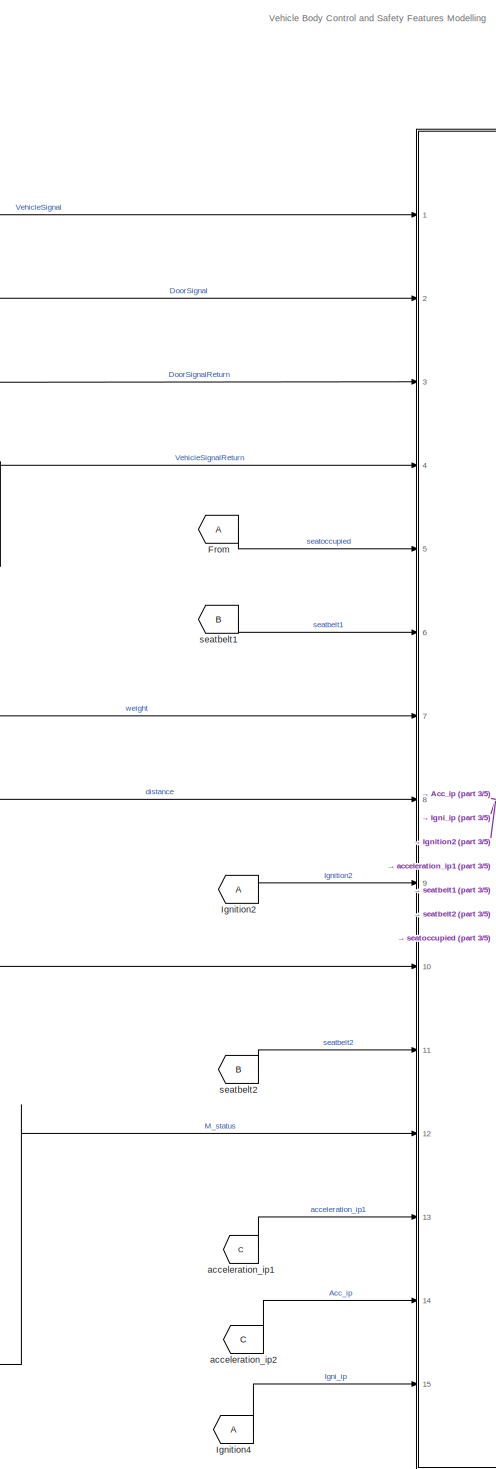
[diagram: root canvas - part 1/5, center side, full height]
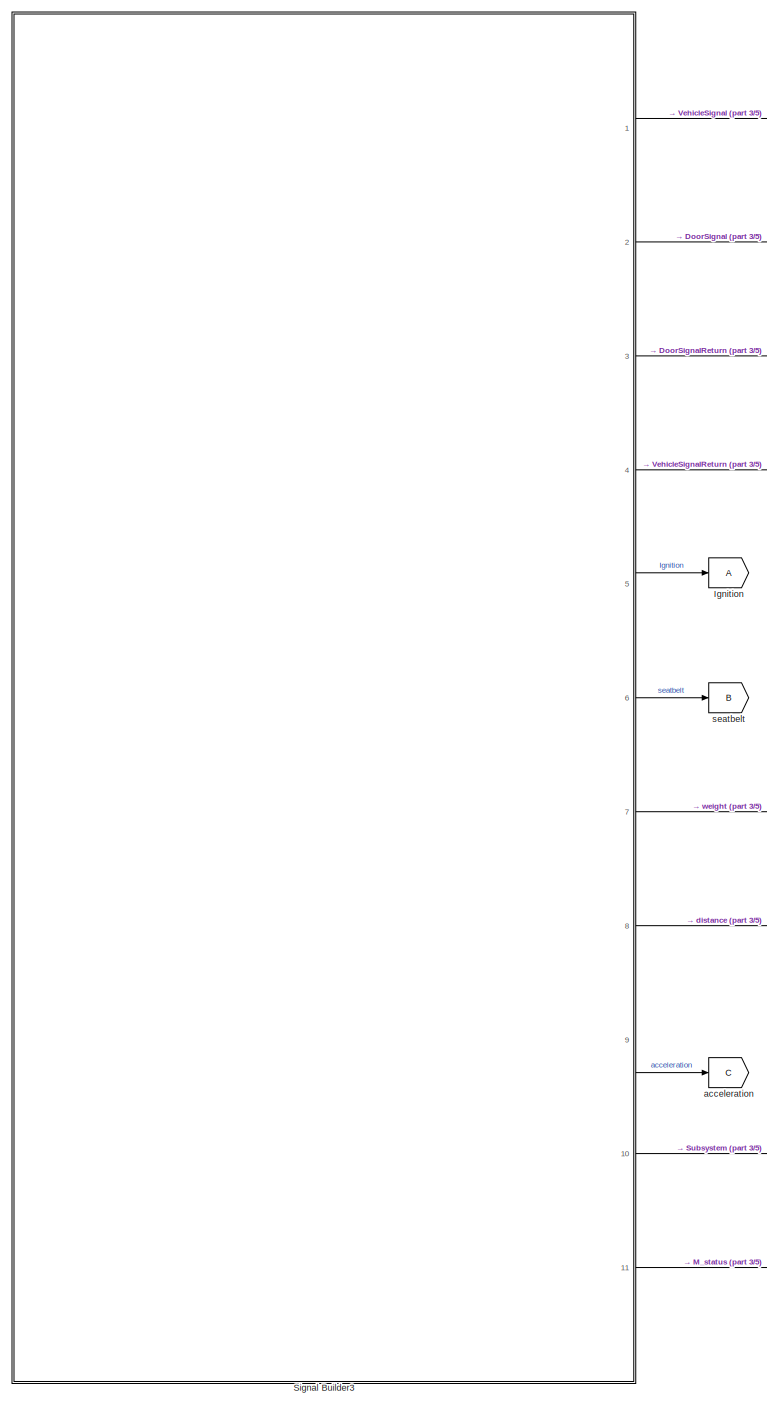
[diagram: root canvas - part 2/5, left side, full height]
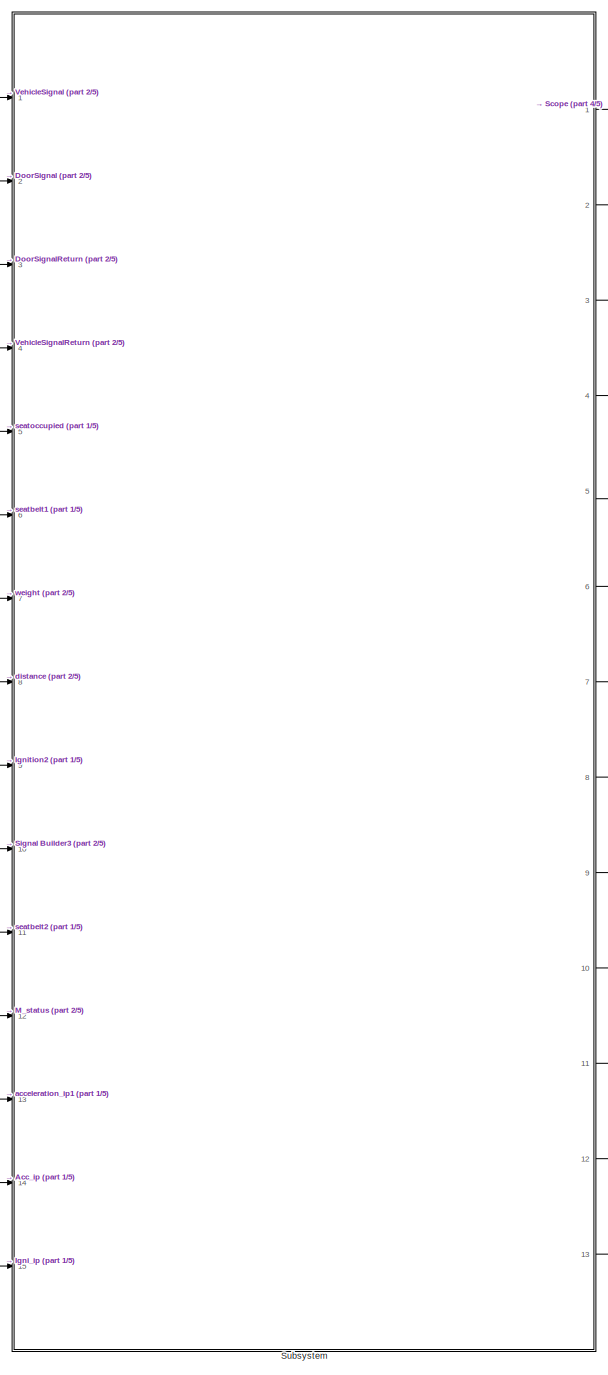
[diagram: root canvas - part 3/5, center side, full height]
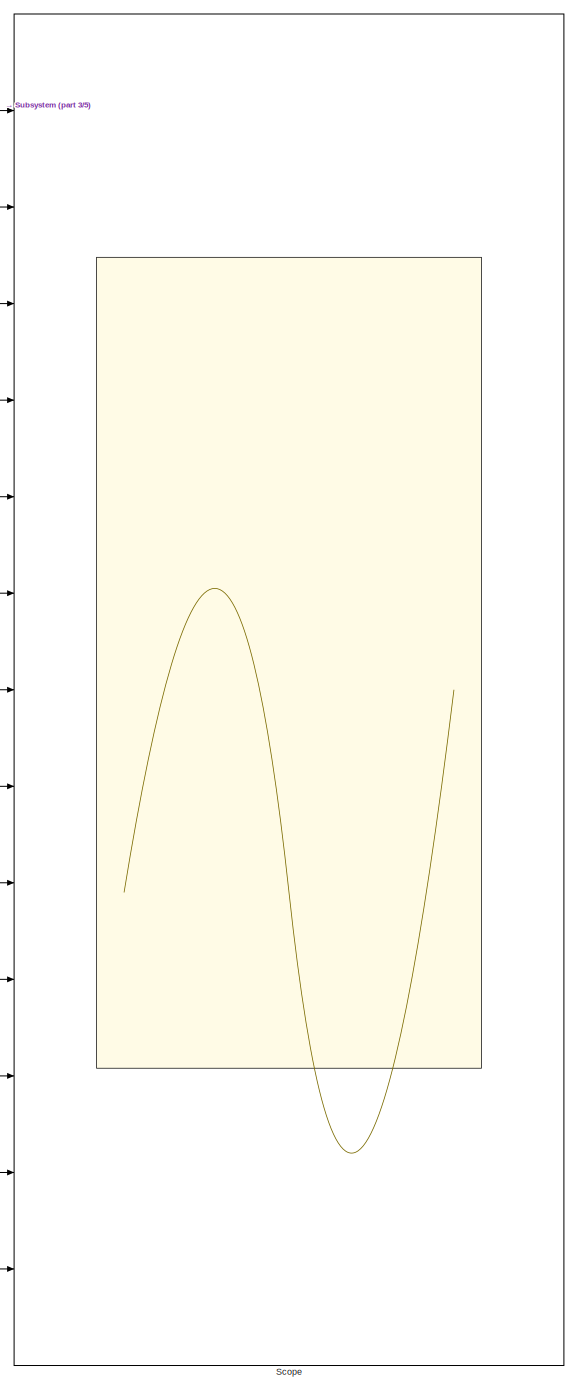
[diagram: root canvas - part 4/5, right side, full height]
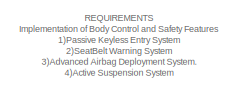
[diagram: root canvas - part 5/5, top left region]
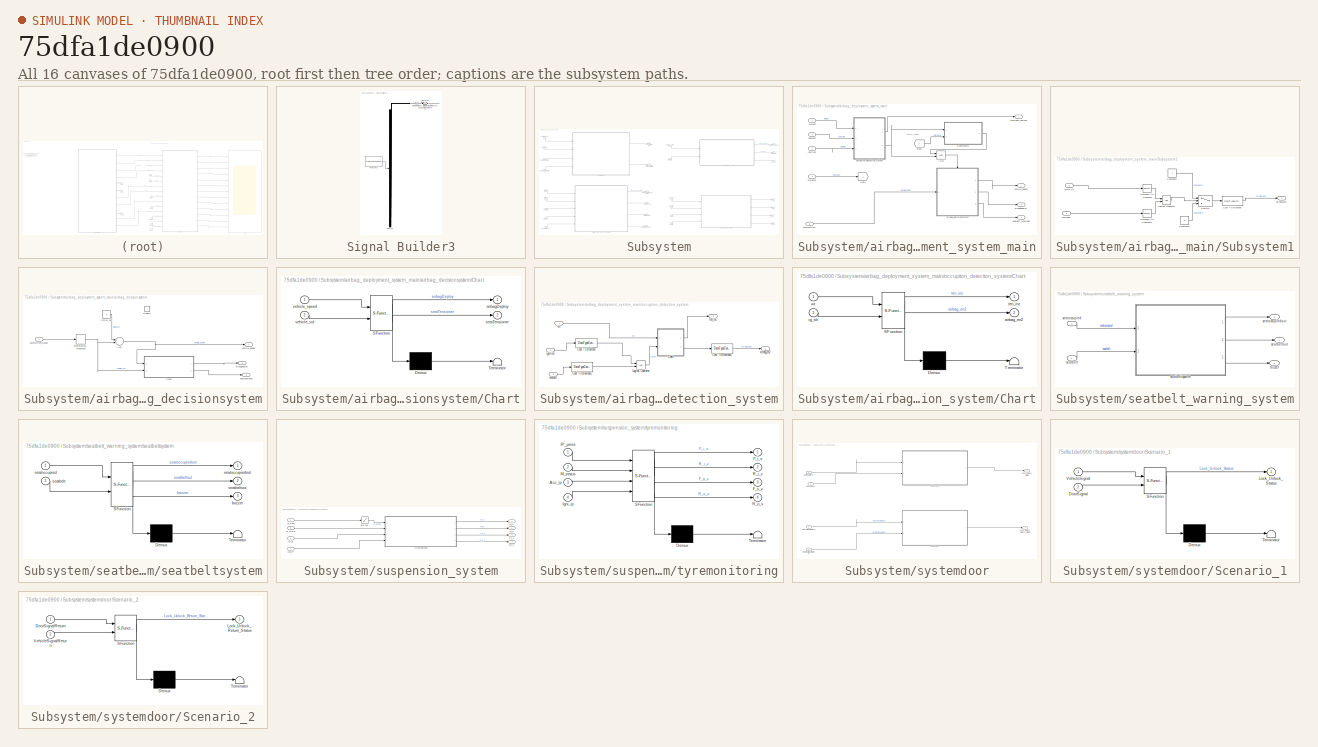
[diagram: thumbnail index - all 16 canvases of the model, root first then tree order]
MODEL slx_75dfa1de0900
KIND model
CONFIG AbsTol = auto
CONFIG EnableMultiTasking = off
CONFIG FixedStep = auto
CONFIG MaxStep = auto
CONFIG MinStep = auto
CONFIG RelTol = 1e-3
CONFIG SampleTimeConstraint = Unconstrained
CONFIG Solver = VariableStepAuto
CONFIG SolverName = VariableStepAuto
CONFIG StartTime = 0.0
CONFIG StopTime = 10.0
BLOCK [From] From
BLOCK [Goto] Ignition
BLOCK [From] Ignition2
BLOCK [From] Ignition4
BLOCK [Scope] Scope
  Floating = off
  NumInputPorts = 13
  Ports = [13]
  ScopeSpecificationString = Simulink.scopes.TimeScopeBlockCfg('CurrentConfiguration', extmgr.ConfigurationSet(extmgr.Configuration('Core','General UI',true),extmgr.Configuration('Core','Source UI',true),extmgr.Configuration('Sources','WiredSimulink',true,'DataLoggingVariableName','ScopeData1'),extmgr.Configuration('Visuals','Time Domain',true,'SerializedDisplays',{struct('MinYLimReal','-0.375','MaxYLimReal','3.375','YLabelRe...<+12526ch>
BLOCK [SubSystem] Signal Builder3
  ClipboardFcn = sigbuilder_block('clipboard');
  CloseFcn = sigbuilder_block('close');
  ContinueFcn = sigbuilder_block('continue')
  CopyFcn = sigbuilder_block('copy');
  DeleteFcn = sigbuilder_block('delete');
  LoadFcn = sigbuilder_block('load');
  MaskHideContents = on
  ModelCloseFcn = sigbuilder_block('modelClose');
  NameChangeFcn = sigbuilder_block('namechange');
  OpenFcn = sigbuilder_block('open',[6 30 1012.5 447.75 ]);
  PauseFcn = sigbuilder_block('pause')
  Ports = [0, 11]
  PreSaveFcn = sigbuilder_block('preSave');
  RequestExecContextInheritance = off
  StartFcn = sigbuilder_block('start');
  StopFcn = sigbuilder_block('stop');
  Tag = STV Subsys
BLOCK [Demux] Signal Builder3/Demux
  Outputs = 11
  Ports = [1, 11]
  Tag = STV Demux
BLOCK [Outport] Signal Builder3/DoorSignal
  IconDisplay = Port number
  Port = 2
  Tag = STV Outport
BLOCK [Outport] Signal Builder3/DoorSignalReturn
  IconDisplay = Port number
  Port = 3
  Tag = STV Outport
BLOCK [FromWorkspace] Signal Builder3/FromWs
  SampleTime = 0
  Tag = STV FromWs
  VariableName = tuvar
  ZeroCross = on
BLOCK [Outport] Signal Builder3/IP_pressure
  IconDisplay = Port number
  Port = 10
  Tag = STV Outport
BLOCK [Outport] Signal Builder3/Mode_status
  IconDisplay = Port number
  Port = 11
  Tag = STV Outport
BLOCK [Outport] Signal Builder3/VehicleSignal
  IconDisplay = Port number
  Tag = STV Outport
  VectorParamsAs1DForOutWhenUnconnected = off
BLOCK [Outport] Signal Builder3/VehicleSignalReturn
  IconDisplay = Port number
  Port = 4
  Tag = STV Outport
BLOCK [Outport] Signal Builder3/acceleration
  IconDisplay = Port number
  Port = 9
  Tag = STV Outport
BLOCK [Outport] Signal Builder3/distance
  IconDisplay = Port number
  Port = 8
  Tag = STV Outport
BLOCK [Outport] Signal Builder3/ignition
  IconDisplay = Port number
  Port = 5
  Tag = STV Outport
BLOCK [Outport] Signal Builder3/seatbelt
  IconDisplay = Port number
  Port = 6
  Tag = STV Outport
BLOCK [Outport] Signal Builder3/weight
  IconDisplay = Port number
  Port = 7
  Tag = STV Outport
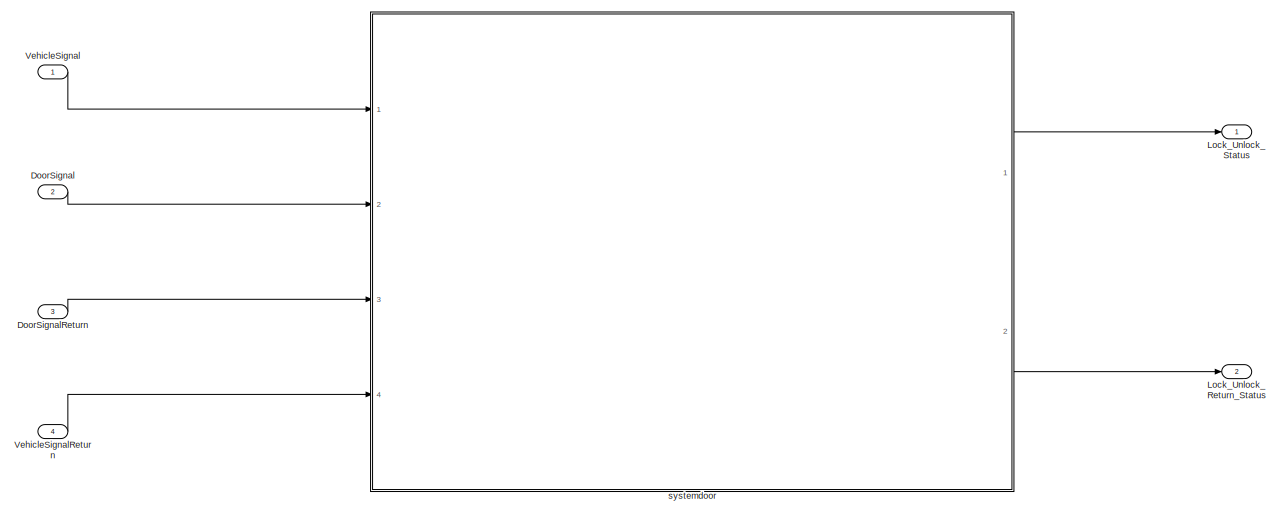
[diagram: Subsystem - part 1/4, top left region]
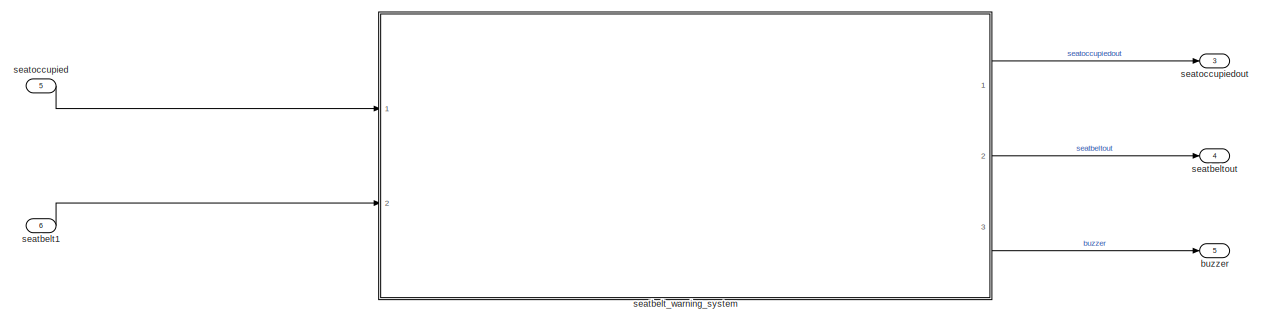
[diagram: Subsystem - part 2/4, top right region]
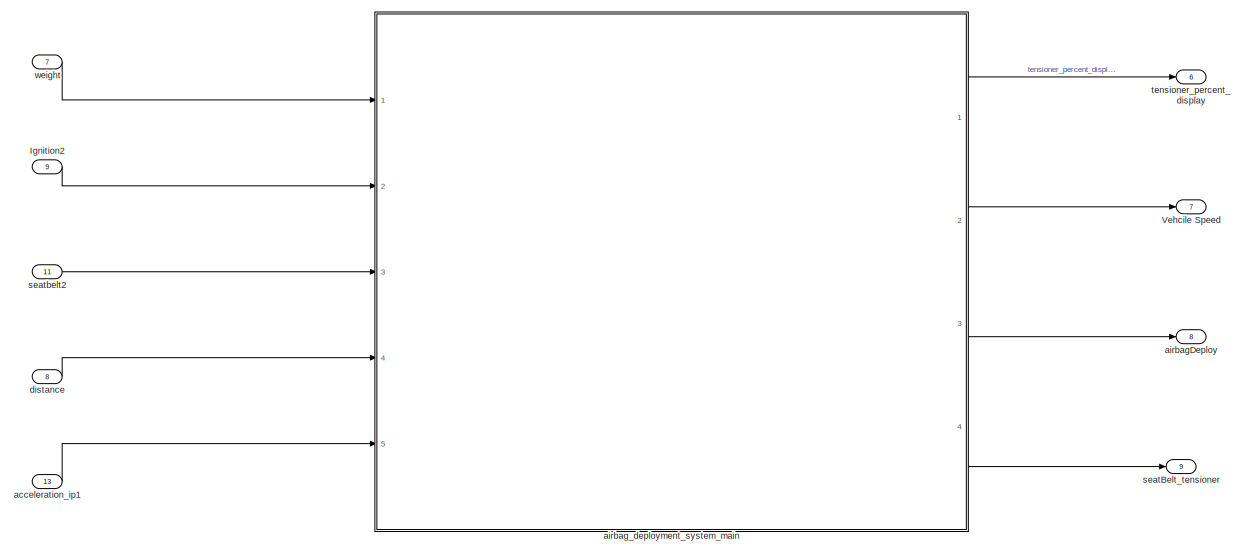
[diagram: Subsystem - part 3/4, bottom left region]
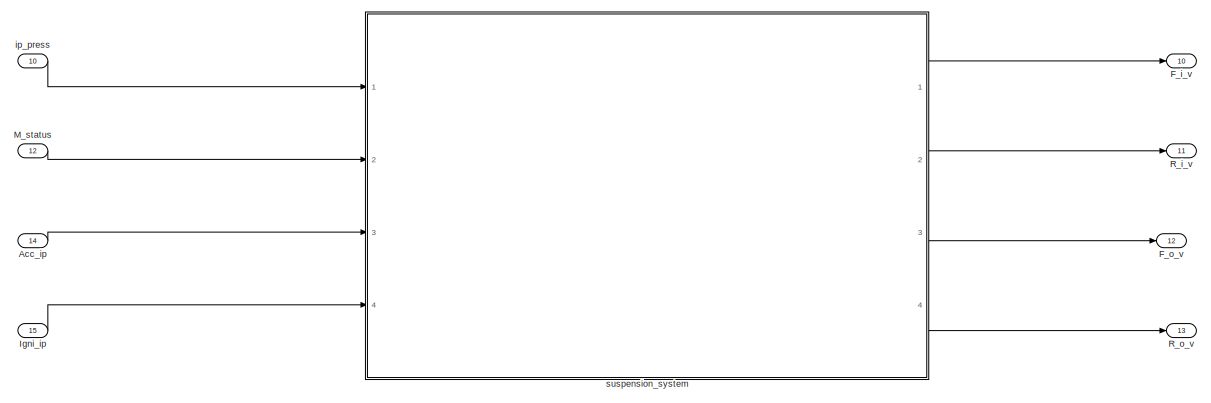
[diagram: Subsystem - part 4/4, bottom right region]
BLOCK [SubSystem] Subsystem
  Ports = [15, 13]
  RequestExecContextInheritance = off
BLOCK [Inport] Subsystem/Acc_ip
  IconDisplay = Port number
  Port = 14
BLOCK [Inport] Subsystem/DoorSignal
  IconDisplay = Port number
  Port = 2
BLOCK [Inport] Subsystem/DoorSignalReturn
  IconDisplay = Port number
  Port = 3
BLOCK [Outport] Subsystem/F_i_v
  IconDisplay = Port number
  Port = 10
BLOCK [Outport] Subsystem/F_o_v
  IconDisplay = Port number
  Port = 12
BLOCK [Inport] Subsystem/Igni_ip
  IconDisplay = Port number
  Port = 15
BLOCK [Inport] Subsystem/Ignition2
  IconDisplay = Port number
  Port = 9
BLOCK [Outport] Subsystem/Lock_Unlock_Return_Status
  IconDisplay = Port number
  Port = 2
BLOCK [Outport] Subsystem/Lock_Unlock_Status 
  IconDisplay = Port number
BLOCK [Inport] Subsystem/M_status
  IconDisplay = Port number
  Port = 12
BLOCK [Outport] Subsystem/R_i_v
  IconDisplay = Port number
  Port = 11
BLOCK [Outport] Subsystem/R_o_v
  IconDisplay = Port number
  Port = 13
BLOCK [Outport] Subsystem/Vehcile Speed
  IconDisplay = Port number
  Port = 7
BLOCK [Inport] Subsystem/VehicleSignal
  IconDisplay = Port number
BLOCK [Inport] Subsystem/VehicleSignalReturn
  IconDisplay = Port number
  Port = 4
BLOCK [Inport] Subsystem/acceleration_ip1
  IconDisplay = Port number
  Port = 13
BLOCK [Outport] Subsystem/airbagDeploy
  IconDisplay = Port number
  Port = 8
BLOCK [SubSystem] Subsystem/airbag_deployment_system_main
  Ports = [5, 4]
  RequestExecContextInheritance = off
BLOCK [Logic] Subsystem/airbag_deployment_system_main/AND
  AllPortsSameDT = off
  IconShape = distinctive
  OutDataTypeStr = boolean
  Ports = [2, 1]
BLOCK [From] Subsystem/airbag_deployment_system_main/From
BLOCK [Goto] Subsystem/airbag_deployment_system_main/Goto
BLOCK [SubSystem] Subsystem/airbag_deployment_system_main/Subsystem1
  Ports = [2, 1]
  RequestExecContextInheritance = off
BLOCK [DataTypeConversion] Subsystem/airbag_deployment_system_main/Subsystem1/Cast To Boolean
  OutDataTypeStr = boolean
  RndMeth = Floor
  SaturateOnIntegerOverflow = off
BLOCK [Reference] Subsystem/airbag_deployment_system_main/Subsystem1/Compare To Constant  REF=simulink/Logic and Bit
Operations/Compare
To Constant
  Ports = [1, 1]
  SourceBlock = simulink/Logic and Bit\nOperations/Compare\nTo Constant
  SourceProductBaseCode = SL
  SourceProductName = Simulink
  SourceType = Compare To Constant
BLOCK [Reference] Subsystem/airbag_deployment_system_main/Subsystem1/Compare To Constant1  REF=simulink/Logic and Bit
Operations/Compare
To Constant
  Ports = [1, 1]
  SourceBlock = simulink/Logic and Bit\nOperations/Compare\nTo Constant
  SourceProductBaseCode = SL
  SourceProductName = Simulink
  SourceType = Compare To Constant
BLOCK [Constant] Subsystem/airbag_deployment_system_main/Subsystem1/Constant1
BLOCK [Constant] Subsystem/airbag_deployment_system_main/Subsystem1/Constant2
  Value = 0
BLOCK [Logic] Subsystem/airbag_deployment_system_main/Subsystem1/Logical Operator
  AllPortsSameDT = off
  OutDataTypeStr = boolean
  Ports = [2, 1]
BLOCK [Inport] Subsystem/airbag_deployment_system_main/Subsystem1/ODS_in
  IconDisplay = Port number
BLOCK [Switch] Subsystem/airbag_deployment_system_main/Subsystem1/Switch
  Criteria = u2 ~= 0
  InputSameDT = off
  SaturateOnIntegerOverflow = off
BLOCK [Outport] Subsystem/airbag_deployment_system_main/Subsystem1/airbag_en1
  IconDisplay = Port number
  OutDataTypeStr = boolean
BLOCK [Inport] Subsystem/airbag_deployment_system_main/Subsystem1/distance
  IconDisplay = Port number
  Port = 2
BLOCK [Inport] Subsystem/airbag_deployment_system_main/acceleration
  IconDisplay = Port number
  Port = 5
BLOCK [SubSystem] Subsystem/airbag_deployment_system_main/airbag_decisionsystem
  Ports = [1, 3, 1]
  RequestExecContextInheritance = off
BLOCK [Sum] Subsystem/airbag_deployment_system_main/airbag_decisionsystem/Add
  InputSameDT = off
  OutDataTypeStr = Inherit: Inherit via internal rule
  Ports = [2, 1]
  SaturateOnIntegerOverflow = off
BLOCK [SubSystem] Subsystem/airbag_deployment_system_main/airbag_decisionsystem/Chart
  ErrorFcn = Stateflow.Translate.translate
  PermitHierarchicalResolution = ExplicitOnly
  Ports = [2, 2]
  RequestExecContextInheritance = off
  SFBlockType = Chart
  TreatAsAtomicUnit = on
BLOCK [Demux] Subsystem/airbag_deployment_system_main/airbag_decisionsystem/Chart/ Demux 
  Outputs = 1
  Ports = [1, 1]
BLOCK [S-Function] Subsystem/airbag_deployment_system_main/airbag_decisionsystem/Chart/ SFunction 
  EnableBusSupport = on
  FunctionName = sf_sfun
  PortCounts = [2 3]
  Ports = [2, 3]
  SFcnIsStateOwnerBlock = off
  SFunctionDeploymentMode = off
  Tag = Stateflow S-Function 2
BLOCK [Terminator] Subsystem/airbag_deployment_system_main/airbag_decisionsystem/Chart/ Terminator 
BLOCK [Outport] Subsystem/airbag_deployment_system_main/airbag_decisionsystem/Chart/airbagDeploy
  IconDisplay = Port number
BLOCK [Outport] Subsystem/airbag_deployment_system_main/airbag_decisionsystem/Chart/seatTensioner
  IconDisplay = Port number
  Port = 2
BLOCK [Inport] Subsystem/airbag_deployment_system_main/airbag_decisionsystem/Chart/vehicle_speed
  IconDisplay = Port number
BLOCK [Inport] Subsystem/airbag_deployment_system_main/airbag_decisionsystem/Chart/vehicle_vol
  IconDisplay = Port number
  Port = 2
BLOCK [EnablePort] Subsystem/airbag_deployment_system_main/airbag_decisionsystem/Enable
  Ports = []
BLOCK [DiscreteIntegrator] Subsystem/airbag_deployment_system_main/airbag_decisionsystem/acceleration_integrator
  ICPrevOutput = DiscIntNeverNeededParam
  ICPrevScaledInput = DiscIntNeverNeededParam
  InitialConditionSetting = Auto
  Ports = [1, 1]
  SampleTime = -1
BLOCK [Inport] Subsystem/airbag_deployment_system_main/airbag_decisionsystem/accelertion_signal
  IconDisplay = Port number
BLOCK [Outport] Subsystem/airbag_deployment_system_main/airbag_decisionsystem/airbagdeploy
  IconDisplay = Port number
  Port = 2
BLOCK [Constant] Subsystem/airbag_deployment_system_main/airbag_decisionsystem/initial_vol
BLOCK [Outport] Subsystem/airbag_deployment_system_main/airbag_decisionsystem/seatTensioner
  IconDisplay = Port number
  Port = 3
BLOCK [Outport] Subsystem/airbag_deployment_system_main/airbag_decisionsystem/vehicle_speed
  IconDisplay = Port number
BLOCK [Outport] Subsystem/airbag_deployment_system_main/airbagdeploy
  IconDisplay = Port number
  Port = 3
BLOCK [Inport] Subsystem/airbag_deployment_system_main/distance
  IconDisplay = Port number
  Port = 4
BLOCK [Inport] Subsystem/airbag_deployment_system_main/ignition
  IconDisplay = Port number
  Port = 2
BLOCK [SubSystem] Subsystem/airbag_deployment_system_main/occuption_detection_system
  Ports = [3, 2]
  RequestExecContextInheritance = off
BLOCK [DataTypeConversion] Subsystem/airbag_deployment_system_main/occuption_detection_system/Cast To Boolean
  OutDataTypeStr = boolean
  RndMeth = Floor
  SaturateOnIntegerOverflow = off
BLOCK [DataTypeConversion] Subsystem/airbag_deployment_system_main/occuption_detection_system/Cast To Boolean1
  OutDataTypeStr = boolean
  RndMeth = Floor
  SaturateOnIntegerOverflow = off
BLOCK [DataTypeConversion] Subsystem/airbag_deployment_system_main/occuption_detection_system/Cast To Boolean2
  OutDataTypeStr = boolean
  RndMeth = Floor
  SaturateOnIntegerOverflow = off
BLOCK [SubSystem] Subsystem/airbag_deployment_system_main/occuption_detection_system/Chart
  ErrorFcn = Stateflow.Translate.translate
  PermitHierarchicalResolution = ExplicitOnly
  Ports = [2, 2]
  RequestExecContextInheritance = off
  SFBlockType = Chart
  TreatAsAtomicUnit = on
BLOCK [Demux] Subsystem/airbag_deployment_system_main/occuption_detection_system/Chart/ Demux 
  Outputs = 1
  Ports = [1, 1]
BLOCK [S-Function] Subsystem/airbag_deployment_system_main/occuption_detection_system/Chart/ SFunction 
  EnableBusSupport = on
  FunctionName = sf_sfun
  PortCounts = [2 3]
  Ports = [2, 3]
  SFcnIsStateOwnerBlock = off
  SFunctionDeploymentMode = off
  Tag = Stateflow S-Function 3
BLOCK [Terminator] Subsystem/airbag_deployment_system_main/occuption_detection_system/Chart/ Terminator 
BLOCK [Outport] Subsystem/airbag_deployment_system_main/occuption_detection_system/Chart/airbag_en2
  IconDisplay = Port number
  Port = 2
BLOCK [Inport] Subsystem/airbag_deployment_system_main/occuption_detection_system/Chart/ig_sb
  IconDisplay = Port number
  Port = 2
BLOCK [Outport] Subsystem/airbag_deployment_system_main/occuption_detection_system/Chart/ten_inc
  IconDisplay = Port number
BLOCK [Inport] Subsystem/airbag_deployment_system_main/occuption_detection_system/Chart/wt
  IconDisplay = Port number
BLOCK [Logic] Subsystem/airbag_deployment_system_main/occuption_detection_system/Logical Operator
  AllPortsSameDT = off
  OutDataTypeStr = boolean
  Ports = [2, 1]
BLOCK [Outport] Subsystem/airbag_deployment_system_main/occuption_detection_system/airbag_en2
  IconDisplay = Port number
  Port = 2
BLOCK [Inport] Subsystem/airbag_deployment_system_main/occuption_detection_system/ignition
  IconDisplay = Port number
  Port = 3
BLOCK [Inport] Subsystem/airbag_deployment_system_main/occuption_detection_system/seatbelt
  IconDisplay = Port number
  Port = 2
BLOCK [Outport] Subsystem/airbag_deployment_system_main/occuption_detection_system/ten_inc
  IconDisplay = Port number
BLOCK [Inport] Subsystem/airbag_deployment_system_main/occuption_detection_system/wt
  IconDisplay = Port number
BLOCK [Inport] Subsystem/airbag_deployment_system_main/seatbelt
  IconDisplay = Port number
  Port = 3
BLOCK [Outport] Subsystem/airbag_deployment_system_main/seatbelt_tensioner
  IconDisplay = Port number
  Port = 4
BLOCK [Outport] Subsystem/airbag_deployment_system_main/tensioner_percent
  IconDisplay = Port number
BLOCK [Outport] Subsystem/airbag_deployment_system_main/vehicle_speed
  IconDisplay = Port number
  Port = 2
BLOCK [Inport] Subsystem/airbag_deployment_system_main/weight
  IconDisplay = Port number
BLOCK [Outport] Subsystem/buzzer
  IconDisplay = Port number
  Port = 5
BLOCK [Inport] Subsystem/distance
  IconDisplay = Port number
  Port = 8
BLOCK [Inport] Subsystem/ip_press
  IconDisplay = Port number
  Port = 10
BLOCK [Outport] Subsystem/seatBelt_tensioner
  IconDisplay = Port number
  Port = 9
BLOCK [Inport] Subsystem/seatbelt1
  IconDisplay = Port number
  Port = 6
BLOCK [Inport] Subsystem/seatbelt2
  IconDisplay = Port number
  Port = 11
BLOCK [SubSystem] Subsystem/seatbelt_warning_system
  Ports = [2, 3]
  RequestExecContextInheritance = off
BLOCK [Outport] Subsystem/seatbelt_warning_system/buzzer
  IconDisplay = Port number
  Port = 3
BLOCK [Inport] Subsystem/seatbelt_warning_system/seatbelt
  IconDisplay = Port number
  Port = 2
BLOCK [Outport] Subsystem/seatbelt_warning_system/seatbeltout
  IconDisplay = Port number
  Port = 2
BLOCK [SubSystem] Subsystem/seatbelt_warning_system/seatbeltsystem
  ErrorFcn = Stateflow.Translate.translate
  PermitHierarchicalResolution = ExplicitOnly
  Ports = [2, 3]
  RequestExecContextInheritance = off
  SFBlockType = Chart
  TreatAsAtomicUnit = on
BLOCK [Demux] Subsystem/seatbelt_warning_system/seatbeltsystem/ Demux 
  Outputs = 1
  Ports = [1, 1]
BLOCK [S-Function] Subsystem/seatbelt_warning_system/seatbeltsystem/ SFunction 
  EnableBusSupport = on
  FunctionName = sf_sfun
  PortCounts = [2 4]
  Ports = [2, 4]
  SFcnIsStateOwnerBlock = off
  SFunctionDeploymentMode = off
  Tag = Stateflow S-Function 1
BLOCK [Terminator] Subsystem/seatbelt_warning_system/seatbeltsystem/ Terminator 
BLOCK [Outport] Subsystem/seatbelt_warning_system/seatbeltsystem/buzzer
  IconDisplay = Port number
  Port = 3
BLOCK [Inport] Subsystem/seatbelt_warning_system/seatbeltsystem/seatbelt
  IconDisplay = Port number
  Port = 2
BLOCK [Outport] Subsystem/seatbelt_warning_system/seatbeltsystem/seatbeltout
  IconDisplay = Port number
  Port = 2
BLOCK [Inport] Subsystem/seatbelt_warning_system/seatbeltsystem/seatoccupied
  IconDisplay = Port number
BLOCK [Outport] Subsystem/seatbelt_warning_system/seatbeltsystem/seatoccupiedout
  IconDisplay = Port number
BLOCK [Inport] Subsystem/seatbelt_warning_system/seatoccupied
  IconDisplay = Port number
BLOCK [Outport] Subsystem/seatbelt_warning_system/seatoccupiedout
  IconDisplay = Port number
BLOCK [Outport] Subsystem/seatbeltout
  IconDisplay = Port number
  Port = 4
BLOCK [Inport] Subsystem/seatoccupied
  IconDisplay = Port number
  Port = 5
BLOCK [Outport] Subsystem/seatoccupiedout
  IconDisplay = Port number
  Port = 3
BLOCK [SubSystem] Subsystem/suspension_system
  Ports = [4, 4]
  RequestExecContextInheritance = off
BLOCK [Inport] Subsystem/suspension_system/Acc_ip
  IconDisplay = Port number
  Port = 3
BLOCK [Outport] Subsystem/suspension_system/F_i_v
  IconDisplay = Port number
BLOCK [Outport] Subsystem/suspension_system/F_o_v
  IconDisplay = Port number
  Port = 3
BLOCK [Inport] Subsystem/suspension_system/IP_press
  IconDisplay = Port number
BLOCK [Inport] Subsystem/suspension_system/Igni_IP
  IconDisplay = Port number
  Port = 4
BLOCK [Inport] Subsystem/suspension_system/M_status
  IconDisplay = Port number
  Port = 2
BLOCK [Outport] Subsystem/suspension_system/R_i_v
  IconDisplay = Port number
  Port = 2
BLOCK [Outport] Subsystem/suspension_system/R_o_v
  IconDisplay = Port number
  Port = 4
BLOCK [Saturate] Subsystem/suspension_system/lim0_100
  AttributesFormatString = %<LowerLimit>=0\n%<UpperLimit>=120
  InputPortMap = u0
  LowerLimit = 0
  Ports = [1, 1]
  UpperLimit = 120
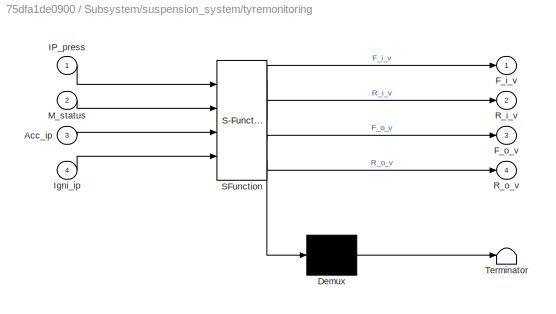
BLOCK [SubSystem] Subsystem/suspension_system/tyremonitoring
  BlockKeywords = __PRM__SERIALIZED__DATA__:Stateflow Chart,Stateflow Diagram
  ErrorFcn = Stateflow.Translate.translate
  PermitHierarchicalResolution = ExplicitOnly
  Ports = [4, 4]
  RequestExecContextInheritance = off
  SFBlockType = Chart
  TreatAsAtomicUnit = on
BLOCK [Demux] Subsystem/suspension_system/tyremonitoring/ Demux 
  Outputs = 1
  Ports = [1, 1]
BLOCK [S-Function] Subsystem/suspension_system/tyremonitoring/ SFunction 
  EnableBusSupport = on
  FunctionName = sf_sfun
  PortCounts = [4 5]
  Ports = [4, 5]
  SFcnIsStateOwnerBlock = off
  SFunctionDeploymentMode = off
  Tag = Stateflow S-Function 6
BLOCK [Terminator] Subsystem/suspension_system/tyremonitoring/ Terminator 
BLOCK [Inport] Subsystem/suspension_system/tyremonitoring/Acc_ip
  IconDisplay = Port number
  Port = 3
BLOCK [Outport] Subsystem/suspension_system/tyremonitoring/F_i_v
  IconDisplay = Port number
BLOCK [Outport] Subsystem/suspension_system/tyremonitoring/F_o_v
  IconDisplay = Port number
  Port = 3
BLOCK [Inport] Subsystem/suspension_system/tyremonitoring/IP_press
  IconDisplay = Port number
BLOCK [Inport] Subsystem/suspension_system/tyremonitoring/Igni_ip
  IconDisplay = Port number
  Port = 4
BLOCK [Inport] Subsystem/suspension_system/tyremonitoring/M_status
  IconDisplay = Port number
  Port = 2
BLOCK [Outport] Subsystem/suspension_system/tyremonitoring/R_i_v
  IconDisplay = Port number
  Port = 2
BLOCK [Outport] Subsystem/suspension_system/tyremonitoring/R_o_v
  IconDisplay = Port number
  Port = 4
BLOCK [SubSystem] Subsystem/systemdoor
  Ports = [4, 2]
  RequestExecContextInheritance = off
BLOCK [Inport] Subsystem/systemdoor/DoorSignal
  IconDisplay = Port number
  Port = 2
BLOCK [Inport] Subsystem/systemdoor/DoorSignalReturn
  IconDisplay = Port number
  Port = 3
BLOCK [Outport] Subsystem/systemdoor/Lock_Unlock_Return_Status
  IconDisplay = Port number
  Port = 2
BLOCK [Outport] Subsystem/systemdoor/Lock_Unlock_Status
  IconDisplay = Port number
BLOCK [SubSystem] Subsystem/systemdoor/Scenario_1
  ErrorFcn = Stateflow.Translate.translate
  PermitHierarchicalResolution = ExplicitOnly
  Ports = [2, 1]
  RequestExecContextInheritance = off
  SFBlockType = Chart
  TreatAsAtomicUnit = on
BLOCK [Demux] Subsystem/systemdoor/Scenario_1/ Demux 
  Outputs = 1
  Ports = [1, 1]
BLOCK [S-Function] Subsystem/systemdoor/Scenario_1/ SFunction 
  EnableBusSupport = on
  FunctionName = sf_sfun
  PortCounts = [2 2]
  Ports = [2, 2]
  SFcnIsStateOwnerBlock = off
  SFunctionDeploymentMode = off
  Tag = Stateflow S-Function 4
BLOCK [Terminator] Subsystem/systemdoor/Scenario_1/ Terminator 
BLOCK [Inport] Subsystem/systemdoor/Scenario_1/DoorSignal
  IconDisplay = Port number
  Port = 2
BLOCK [Outport] Subsystem/systemdoor/Scenario_1/Lock_Unlock_Status
  IconDisplay = Port number
  VectorParamsAs1DForOutWhenUnconnected = off
BLOCK [Inport] Subsystem/systemdoor/Scenario_1/VehicleSignal
  IconDisplay = Port number
BLOCK [SubSystem] Subsystem/systemdoor/Scenario_2
  ErrorFcn = Stateflow.Translate.translate
  PermitHierarchicalResolution = ExplicitOnly
  Ports = [2, 1]
  RequestExecContextInheritance = off
  SFBlockType = Chart
  TreatAsAtomicUnit = on
BLOCK [Demux] Subsystem/systemdoor/Scenario_2/ Demux 
  Outputs = 1
  Ports = [1, 1]
BLOCK [S-Function] Subsystem/systemdoor/Scenario_2/ SFunction 
  EnableBusSupport = on
  FunctionName = sf_sfun
  PortCounts = [2 2]
  Ports = [2, 2]
  SFcnIsStateOwnerBlock = off
  SFunctionDeploymentMode = off
  Tag = Stateflow S-Function 5
BLOCK [Terminator] Subsystem/systemdoor/Scenario_2/ Terminator 
BLOCK [Inport] Subsystem/systemdoor/Scenario_2/DoorSignalReturn
  IconDisplay = Port number
BLOCK [Outport] Subsystem/systemdoor/Scenario_2/Lock_Unlock_Return_Status
  IconDisplay = Port number
BLOCK [Inport] Subsystem/systemdoor/Scenario_2/VehicleSignalReturn
  IconDisplay = Port number
  Port = 2
BLOCK [Inport] Subsystem/systemdoor/VehicleSignal
  IconDisplay = Port number
BLOCK [Inport] Subsystem/systemdoor/VehicleSignalReturn
  IconDisplay = Port number
  Port = 4
BLOCK [Outport] Subsystem/tensioner_percent_display
  IconDisplay = Port number
  Port = 6
BLOCK [Inport] Subsystem/weight
  IconDisplay = Port number
  Port = 7
BLOCK [Goto] acceleration
  GotoTag = C
BLOCK [From] acceleration_ip1
  GotoTag = C
BLOCK [From] acceleration_ip2
  GotoTag = C
BLOCK [Goto] seatbelt
  GotoTag = B
BLOCK [From] seatbelt1
  GotoTag = B
BLOCK [From] seatbelt2
  GotoTag = B
ANNOTATION (root): Vehicle Body Control and Safety Features Modelling
ANNOTATION (root): REQUIREMENTS Implementation of Body Control and Safety Features 1)Passive Keyless Entry System 2)SeatBelt Warning System 3)Advanced Airbag Deployment System. 4)Active Suspension System Required Inputs and the respective outputs are as follows: 1)Inputs: Vehicle Signal Door Signal Door signal Return Vehicle Signal Return Ignition Status (on/off) Seatbelt status (on/off) Weight Sensor (kg) Distance(...<+254ch>
ANNOTATION Subsystem/airbag_deployment_system_main: ODS_input
LINE From:1 -> Subsystem:5
LINE Ignition2:1 -> Subsystem:9
LINE Ignition4:1 -> Subsystem:15
LINE Signal Builder3:1 -> Subsystem:1
LINE Signal Builder3:10 -> Subsystem:10
LINE Signal Builder3:11 -> Subsystem:12
LINE Signal Builder3:2 -> Subsystem:2
LINE Signal Builder3:3 -> Subsystem:3
LINE Signal Builder3:4 -> Subsystem:4
LINE Signal Builder3:5 -> Ignition:1
LINE Signal Builder3:6 -> seatbelt:1
LINE Signal Builder3:7 -> Subsystem:7
LINE Signal Builder3:8 -> Subsystem:8
LINE Signal Builder3:9 -> acceleration:1
LINE Subsystem/Acc_ip:1 -> Subsystem/suspension_system:3
LINE Subsystem/DoorSignal:1 -> Subsystem/systemdoor:2
LINE Subsystem/DoorSignalReturn:1 -> Subsystem/systemdoor:3
LINE Subsystem/Igni_ip:1 -> Subsystem/suspension_system:4
LINE Subsystem/Ignition2:1 -> Subsystem/airbag_deployment_system_main:2
LINE Subsystem/M_status:1 -> Subsystem/suspension_system:2
LINE Subsystem/VehicleSignal:1 -> Subsystem/systemdoor:1
LINE Subsystem/VehicleSignalReturn:1 -> Subsystem/systemdoor:4
LINE Subsystem/acceleration_ip1:1 -> Subsystem/airbag_deployment_system_main:5
LINE Subsystem/airbag_deployment_system_main/AND:1 -> Subsystem/airbag_deployment_system_main/airbag_decisionsystem:enable
LINE Subsystem/airbag_deployment_system_main/From:1 -> Subsystem/airbag_deployment_system_main/Subsystem1:2
LINE Subsystem/airbag_deployment_system_main/Subsystem1/Cast To Boolean:1 -> Subsystem/airbag_deployment_system_main/Subsystem1/airbag_en1:1
LINE Subsystem/airbag_deployment_system_main/Subsystem1/Compare To Constant1:1 -> Subsystem/airbag_deployment_system_main/Subsystem1/Logical Operator:2
LINE Subsystem/airbag_deployment_system_main/Subsystem1/Compare To Constant:1 -> Subsystem/airbag_deployment_system_main/Subsystem1/Logical Operator:1
LINE Subsystem/airbag_deployment_system_main/Subsystem1/Constant1:1 -> Subsystem/airbag_deployment_system_main/Subsystem1/Switch:1
LINE Subsystem/airbag_deployment_system_main/Subsystem1/Constant2:1 -> Subsystem/airbag_deployment_system_main/Subsystem1/Switch:3
LINE Subsystem/airbag_deployment_system_main/Subsystem1/Logical Operator:1 -> Subsystem/airbag_deployment_system_main/Subsystem1/Switch:2
LINE Subsystem/airbag_deployment_system_main/Subsystem1/ODS_in:1 -> Subsystem/airbag_deployment_system_main/Subsystem1/Compare To Constant:1
LINE Subsystem/airbag_deployment_system_main/Subsystem1/Switch:1 -> Subsystem/airbag_deployment_system_main/Subsystem1/Cast To Boolean:1
LINE Subsystem/airbag_deployment_system_main/Subsystem1/distance:1 -> Subsystem/airbag_deployment_system_main/Subsystem1/Compare To Constant1:1
LINE Subsystem/airbag_deployment_system_main/Subsystem1:1 -> Subsystem/airbag_deployment_system_main/AND:1
LINE Subsystem/airbag_deployment_system_main/acceleration:1 -> Subsystem/airbag_deployment_system_main/airbag_decisionsystem:1
NET Subsystem/airbag_deployment_system_main/airbag_decisionsystem/Add:1 -> Subsystem/airbag_deployment_system_main/airbag_decisionsystem/Chart:1, Subsystem/airbag_deployment_system_main/airbag_decisionsystem/vehicle_speed:1
LINE Subsystem/airbag_deployment_system_main/airbag_decisionsystem/Chart:1 -> Subsystem/airbag_deployment_system_main/airbag_decisionsystem/airbagdeploy:1
LINE Subsystem/airbag_deployment_system_main/airbag_decisionsystem/Chart:2 -> Subsystem/airbag_deployment_system_main/airbag_decisionsystem/seatTensioner:1
NET Subsystem/airbag_deployment_system_main/airbag_decisionsystem/acceleration_integrator:1 -> Subsystem/airbag_deployment_system_main/airbag_decisionsystem/Add:2, Subsystem/airbag_deployment_system_main/airbag_decisionsystem/Chart:2
LINE Subsystem/airbag_deployment_system_main/airbag_decisionsystem/accelertion_signal:1 -> Subsystem/airbag_deployment_system_main/airbag_decisionsystem/acceleration_integrator:1
LINE Subsystem/airbag_deployment_system_main/airbag_decisionsystem/initial_vol:1 -> Subsystem/airbag_deployment_system_main/airbag_decisionsystem/Add:1
LINE Subsystem/airbag_deployment_system_main/airbag_decisionsystem:1 -> Subsystem/airbag_deployment_system_main/vehicle_speed:1
LINE Subsystem/airbag_deployment_system_main/airbag_decisionsystem:2 -> Subsystem/airbag_deployment_system_main/airbagdeploy:1
LINE Subsystem/airbag_deployment_system_main/airbag_decisionsystem:3 -> Subsystem/airbag_deployment_system_main/seatbelt_tensioner:1
LINE Subsystem/airbag_deployment_system_main/distance:1 -> Subsystem/airbag_deployment_system_main/Goto:1
LINE Subsystem/airbag_deployment_system_main/ignition:1 -> Subsystem/airbag_deployment_system_main/occuption_detection_system:3
LINE Subsystem/airbag_deployment_system_main/occuption_detection_system/Cast To Boolean1:1 -> Subsystem/airbag_deployment_system_main/occuption_detection_system/Logical Operator:2
LINE Subsystem/airbag_deployment_system_main/occuption_detection_system/Cast To Boolean2:1 -> Subsystem/airbag_deployment_system_main/occuption_detection_system/airbag_en2:1
LINE Subsystem/airbag_deployment_system_main/occuption_detection_system/Cast To Boolean:1 -> Subsystem/airbag_deployment_system_main/occuption_detection_system/Logical Operator:1
LINE Subsystem/airbag_deployment_system_main/occuption_detection_system/Chart:1 -> Subsystem/airbag_deployment_system_main/occuption_detection_system/ten_inc:1
LINE Subsystem/airbag_deployment_system_main/occuption_detection_system/Chart:2 -> Subsystem/airbag_deployment_system_main/occuption_detection_system/Cast To Boolean2:1
LINE Subsystem/airbag_deployment_system_main/occuption_detection_system/Logical Operator:1 -> Subsystem/airbag_deployment_system_main/occuption_detection_system/Chart:2
LINE Subsystem/airbag_deployment_system_main/occuption_detection_system/ignition:1 -> Subsystem/airbag_deployment_system_main/occuption_detection_system/Cast To Boolean:1
LINE Subsystem/airbag_deployment_system_main/occuption_detection_system/seatbelt:1 -> Subsystem/airbag_deployment_system_main/occuption_detection_system/Cast To Boolean1:1
LINE Subsystem/airbag_deployment_system_main/occuption_detection_system/wt:1 -> Subsystem/airbag_deployment_system_main/occuption_detection_system/Chart:1
LINE Subsystem/airbag_deployment_system_main/occuption_detection_system:1 -> Subsystem/airbag_deployment_system_main/tensioner_percent:1
NET Subsystem/airbag_deployment_system_main/occuption_detection_system:2 -> Subsystem/airbag_deployment_system_main/AND:2, Subsystem/airbag_deployment_system_main/Subsystem1:1
LINE Subsystem/airbag_deployment_system_main/seatbelt:1 -> Subsystem/airbag_deployment_system_main/occuption_detection_system:2
LINE Subsystem/airbag_deployment_system_main/weight:1 -> Subsystem/airbag_deployment_system_main/occuption_detection_system:1
LINE Subsystem/airbag_deployment_system_main:1 -> Subsystem/tensioner_percent_display:1
LINE Subsystem/airbag_deployment_system_main:2 -> Subsystem/Vehcile Speed:1
LINE Subsystem/airbag_deployment_system_main:3 -> Subsystem/airbagDeploy:1
LINE Subsystem/airbag_deployment_system_main:4 -> Subsystem/seatBelt_tensioner:1
LINE Subsystem/distance:1 -> Subsystem/airbag_deployment_system_main:4
LINE Subsystem/ip_press:1 -> Subsystem/suspension_system:1
LINE Subsystem/seatbelt1:1 -> Subsystem/seatbelt_warning_system:2
LINE Subsystem/seatbelt2:1 -> Subsystem/airbag_deployment_system_main:3
LINE Subsystem/seatbelt_warning_system/seatbelt:1 -> Subsystem/seatbelt_warning_system/seatbeltsystem:2
LINE Subsystem/seatbelt_warning_system/seatbeltsystem:1 -> Subsystem/seatbelt_warning_system/seatoccupiedout:1
LINE Subsystem/seatbelt_warning_system/seatbeltsystem:2 -> Subsystem/seatbelt_warning_system/seatbeltout:1
LINE Subsystem/seatbelt_warning_system/seatbeltsystem:3 -> Subsystem/seatbelt_warning_system/buzzer:1
LINE Subsystem/seatbelt_warning_system/seatoccupied:1 -> Subsystem/seatbelt_warning_system/seatbeltsystem:1
LINE Subsystem/seatbelt_warning_system:1 -> Subsystem/seatoccupiedout:1
LINE Subsystem/seatbelt_warning_system:2 -> Subsystem/seatbeltout:1
LINE Subsystem/seatbelt_warning_system:3 -> Subsystem/buzzer:1
LINE Subsystem/seatoccupied:1 -> Subsystem/seatbelt_warning_system:1
LINE Subsystem/suspension_system/Acc_ip:1 -> Subsystem/suspension_system/tyremonitoring:3
LINE Subsystem/suspension_system/IP_press:1 -> Subsystem/suspension_system/lim0_100:1
LINE Subsystem/suspension_system/Igni_IP:1 -> Subsystem/suspension_system/tyremonitoring:4
LINE Subsystem/suspension_system/M_status:1 -> Subsystem/suspension_system/tyremonitoring:2
LINE Subsystem/suspension_system/lim0_100:1 -> Subsystem/suspension_system/tyremonitoring:1
LINE Subsystem/suspension_system/tyremonitoring:1 -> Subsystem/suspension_system/F_i_v:1
LINE Subsystem/suspension_system/tyremonitoring:2 -> Subsystem/suspension_system/R_i_v:1
LINE Subsystem/suspension_system/tyremonitoring:3 -> Subsystem/suspension_system/F_o_v:1
LINE Subsystem/suspension_system/tyremonitoring:4 -> Subsystem/suspension_system/R_o_v:1
LINE Subsystem/suspension_system:1 -> Subsystem/F_i_v:1
LINE Subsystem/suspension_system:2 -> Subsystem/R_i_v:1
LINE Subsystem/suspension_system:3 -> Subsystem/F_o_v:1
LINE Subsystem/suspension_system:4 -> Subsystem/R_o_v:1
LINE Subsystem/systemdoor/DoorSignal:1 -> Subsystem/systemdoor/Scenario_1:2
LINE Subsystem/systemdoor/DoorSignalReturn:1 -> Subsystem/systemdoor/Scenario_2:1
LINE Subsystem/systemdoor/Scenario_1:1 -> Subsystem/systemdoor/Lock_Unlock_Status:1
LINE Subsystem/systemdoor/Scenario_2:1 -> Subsystem/systemdoor/Lock_Unlock_Return_Status:1
LINE Subsystem/systemdoor/VehicleSignal:1 -> Subsystem/systemdoor/Scenario_1:1
LINE Subsystem/systemdoor/VehicleSignalReturn:1 -> Subsystem/systemdoor/Scenario_2:2
LINE Subsystem/systemdoor:1 -> Subsystem/Lock_Unlock_Status :1
LINE Subsystem/systemdoor:2 -> Subsystem/Lock_Unlock_Return_Status:1
LINE Subsystem/weight:1 -> Subsystem/airbag_deployment_system_main:1
LINE Subsystem:1 -> Scope:1
LINE Subsystem:10 -> Scope:10
LINE Subsystem:11 -> Scope:11
LINE Subsystem:12 -> Scope:12
LINE Subsystem:13 -> Scope:13
LINE Subsystem:2 -> Scope:2
LINE Subsystem:3 -> Scope:3
LINE Subsystem:4 -> Scope:4
LINE Subsystem:5 -> Scope:5
LINE Subsystem:6 -> Scope:6
LINE Subsystem:7 -> Scope:7
LINE Subsystem:8 -> Scope:8
LINE Subsystem:9 -> Scope:9
LINE acceleration_ip1:1 -> Subsystem:13
LINE acceleration_ip2:1 -> Subsystem:14
LINE seatbelt1:1 -> Subsystem:6
LINE seatbelt2:1 -> Subsystem:11
note: NET lines group one-source signal fan-out (src -> all destinations, sorted); 1:1 wires keep LINE
CHART Subsystem/seatbelt_warning_system/seatbeltsystem states=4 transitions=7
  STATE_LABEL 'Idle_state\nen:\nseatoccupiedout=0;\nbuzzer=0;\nseatbeltout=0;'
  STATE_LABEL 'Seatoccupied\nen:\nseatoccupiedout=1;\n'
  STATE_LABEL "Buzzer\nen:\nseatbeltout=0;\nbuzzer=1;\ndisp('buzzer on');\n"
  STATE_LABEL 'SeatbeltOn\nen:\nseatbeltout=1;\nbuzzer=0;'
CHART Subsystem/airbag_deployment_system_main/airbag_decisionsystem/Chart states=3 transitions=6
  STATE_LABEL 'normalState\n\nen, du:\nairbagDeploy=0;\nseatTensioner=0;\n'
  STATE_LABEL 'standbyState\n\nen, du:\nairbagDeploy=0;\nseatTensioner=1;\n'
  STATE_LABEL 'fireState\n\nen, du:\nairbagDeploy=1;\nseatTensioner=1;\n'
CHART Subsystem/airbag_deployment_system_main/occuption_detection_system/Chart states=2 transitions=17
  STATE_LABEL 'systemOn\nexit:\nairbag_en2=1;'
  STATE_LABEL '% tension adjuster'
  STATE_LABEL '[wt>=75.0 && wt<=100.0]'
  STATE_LABEL '{ten_inc=10.0+Tini;}'
  STATE_LABEL '[wt>=50.0 && wt<=75.0]'
  STATE_LABEL '{ten_inc=20.0+Tini;}'
  STATE_LABEL '[wt>=25.0 && wt<=50.0]'
  STATE_LABEL '{ten_inc=Tini;}'
  STATE_LABEL '{ten_inc=30.0+Tini;}'
  STATE_LABEL 'systemOff\nexit:\nairbag_en2=0;'
CHART Subsystem/systemdoor/Scenario_1 states=11 transitions=22
  STATE_LABEL '<!DOCTYPE HTML PUBLIC "-//W3C//DTD HTML 4.0//EN" "http://www.w3.org/TR/REC-html40/strict.dtd">\n<html><head><meta name="qrichtext" content="1" /><style type="text/css">\np, li { white-space: pre-wrap; }\n</style></head><body align="left" style=" font-family:\'Helvetica\'; font-size:12px; font-weight:400; font-style:normal;">\n<p align="left" style=" margin-top:0px; margin-bottom:0px; margin-left:0px; ma...<+162ch>'
  STATE_LABEL 'VehicleSensor'
  STATE_LABEL 'Active\nen:\nVehicleActive  =  1;\n'
  STATE_LABEL 'Inactive\nen:\nVehicleActive  =  0;\nen:\ncount  =  100;\ndu:\ncount  =  count + 50;\n'
  STATE_LABEL '[count >= 750]'
  STATE_LABEL '[VehicleSignal >= 100]'
  STATE_LABEL '[VehicleSignal > 100]'
  STATE_LABEL 'Active\nen:\nVehicleActive  =  1;\n'
  STATE_LABEL 'Inactive\nen:\nVehicleActive  =  0;\nen:\ncount  =  100;\ndu:\ncount  =  count + 50;\n'
  STATE_LABEL '<!DOCTYPE HTML PUBLIC "-//W3C//DTD HTML 4.0//EN" "http://www.w3.org/TR/REC-html40/strict.dtd">\n<html><head><meta name="qrichtext" content="1" /><style type="text/css">\np, li { white-space: pre-wrap; }\n</style></head><body align="left" style=" font-family:\'Helvetica\'; font-size:12px; font-weight:400; font-style:normal;">\n<p align="left" style=" margin-top:0px; margin-bottom:0px; margin-left:0px; ma...<+597ch>'
  STATE_LABEL 'DoorStatus'
  STATE_LABEL '[VehicleActive && DoorActive == 1 ]'
  STATE_LABEL '{Lock_Unlock_Status = 1;}'
  STATE_LABEL '[VehicleActive]'
  STATE_LABEL '{Lock_Unlock_Status = 2;}'
  STATE_LABEL '[DoorActive]'
  STATE_LABEL '{Lock_Unlock_Status = 0;}'
  STATE_LABEL '{Lock_Unlock_Status = 3;}'
  STATE_LABEL 'DoorSensor'
  STATE_LABEL 'Active\nen:\nDoorActive  =  1;'
  STATE_LABEL 'Inactive\nen:\nDoorActive = 0;\nen:\ncount = 1;\ndu:\ncount = count + 10;'
  STATE_LABEL '[count >=100]'
  STATE_LABEL '[DoorSignal >= 0]'
  STATE_LABEL '[DoorSignal > 0]'
  STATE_LABEL 'Active\nen:\nDoorActive  =  1;'
  STATE_LABEL 'Inactive\nen:\nDoorActive = 0;\nen:\ncount = 1;\ndu:\ncount = count + 10;'
  STATE_LABEL '<!DOCTYPE HTML PUBLIC "-//W3C//DTD HTML 4.0//EN" "http://www.w3.org/TR/REC-html40/strict.dtd">\n<html><head><meta name="qrichtext" content="1" /><style type="text/css">\np, li { white-space: pre-wrap; }\n</style></head><body align="left" style=" font-family:\'Helvetica\'; font-size:12px; font-weight:400; font-style:normal;">\n<p align="left" style=" margin-top:0px; margin-bottom:0px; margin-left:0px; ma...<+599ch>'
  STATE_LABEL '<!DOCTYPE HTML PUBLIC "-//W3C//DTD HTML 4.0//EN" "http://www.w3.org/TR/REC-html40/strict.dtd">\n<html><head><meta name="qrichtext" content="1" /><style type="text/css">\np, li { white-space: pre-wrap; }\n</style></head><body align="left" style=" font-family:\'Helvetica\'; font-size:12px; font-weight:400; font-style:normal;">\n<p align="left" style=" margin-top:0px; margin-bottom:0px; margin-left:0px; ma...<+580ch>'
CHART Subsystem/systemdoor/Scenario_2 states=11 transitions=22
  STATE_LABEL '<!DOCTYPE HTML PUBLIC "-//W3C//DTD HTML 4.0//EN" "http://www.w3.org/TR/REC-html40/strict.dtd">\n<html><head><meta name="qrichtext" content="1" /><style type="text/css">\np, li { white-space: pre-wrap; }\n</style></head><body align="left" style=" font-family:\'Helvetica\'; font-size:12px; font-weight:400; font-style:normal;">\n<p align="left" style=" margin-top:0px; margin-bottom:0px; margin-left:0px; ma...<+156ch>'
  STATE_LABEL 'VehicleSensor'
  STATE_LABEL 'Active\nen:\nVehicleRange  =  0;\n'
  STATE_LABEL 'Inactive\nen:\nVehicleRange  =  1;\nen:\ncount  =  750;\ndu:\ncount  =  count - 50;\n'
  STATE_LABEL '[count > 100]'
  STATE_LABEL '[VehicleSignalReturn <= 750]'
  STATE_LABEL '[VehicleSignalReturn < 750]'
  STATE_LABEL 'Active\nen:\nVehicleRange  =  0;\n'
  STATE_LABEL 'Inactive\nen:\nVehicleRange  =  1;\nen:\ncount  =  750;\ndu:\ncount  =  count - 50;\n'
  STATE_LABEL 'DoorStatus'
  STATE_LABEL '[VehicleRange && DoorRange]'
  STATE_LABEL '{Lock_Unlock_Return_Status = 1;}'
  STATE_LABEL '[VehicleRange]'
  STATE_LABEL '{Lock_Unlock_Return_Status = 2;}'
  STATE_LABEL '[DoorRange]'
  STATE_LABEL '{Lock_Unlock_Return_Status = 0;}'
  STATE_LABEL '{Lock_Unlock_Return_Status = 3;}'
  STATE_LABEL '<!DOCTYPE HTML PUBLIC "-//W3C//DTD HTML 4.0//EN" "http://www.w3.org/TR/REC-html40/strict.dtd">\n<html><head><meta name="qrichtext" content="1" /><style type="text/css">\np, li { white-space: pre-wrap; }\n</style></head><body align="left" style=" font-family:\'Helvetica\'; font-size:12px; font-weight:400; font-style:normal;">\n<p align="left" style=" margin-top:0px; margin-bottom:0px; margin-left:0px; ma...<+597ch>'
  STATE_LABEL 'DoorSensor'
  STATE_LABEL 'Active\nen:\nDoorRange =  0;'
  STATE_LABEL 'Inactive\nen:\nDoorRange = 1;\nen:\ncount = 100;\ndu:\ncount = count - 10;'
  STATE_LABEL '[count > 0]'
  STATE_LABEL '[DoorSignalReturn <= 100]'
  STATE_LABEL '[DoorSignalReturn < 100]'
  STATE_LABEL 'Active\nen:\nDoorRange =  0;'
  STATE_LABEL 'Inactive\nen:\nDoorRange = 1;\nen:\ncount = 100;\ndu:\ncount = count - 10;'
  STATE_LABEL '<!DOCTYPE HTML PUBLIC "-//W3C//DTD HTML 4.0//EN" "http://www.w3.org/TR/REC-html40/strict.dtd">\n<html><head><meta name="qrichtext" content="1" /><style type="text/css">\np, li { white-space: pre-wrap; }\n</style></head><body align="left" style=" font-family:\'Helvetica\'; font-size:12px; font-weight:400; font-style:normal;">\n<p align="left" style=" margin-top:0px; margin-bottom:0px; margin-left:0px; ma...<+589ch>'
  STATE_LABEL '<!DOCTYPE HTML PUBLIC "-//W3C//DTD HTML 4.0//EN" "http://www.w3.org/TR/REC-html40/strict.dtd">\n<html><head><meta name="qrichtext" content="1" /><style type="text/css">\np, li { white-space: pre-wrap; }\n</style></head><body align="left" style=" font-family:\'Helvetica\'; font-size:12px; font-weight:400; font-style:normal;">\n<p align="left" style=" margin-top:0px; margin-bottom:0px; margin-left:0px; ma...<+582ch>'
CHART Subsystem/suspension_system/tyremonitoring states=4 transitions=34
  STATE_LABEL 'Ignition_OFF\nen:\nF_o_v =0;\nR_o_v=0;\nF_i_v =0;\nR_i_v=0;'
  STATE_LABEL 'Ignition_ON\n'
  STATE_LABEL 'City_mode'
  STATE_LABEL '[IP_press==50]'
  STATE_LABEL '[IP_press<50]{F_i_v=1;R_i_v=1;F_o_v=0;R_o_v=0}'
  STATE_LABEL '[IP_press>50]{F_o_v=1;R_o_v=1;F_i_v=0;R_i_v=0}'
  STATE_LABEL '[IP_press==50 && Acc_ip >30&&Acc_ip<60]'
  STATE_LABEL '[IP_press==50 && Acc_ip>60]'
  STATE_LABEL '[IP_press==50 && Acc_ip <30]'
  STATE_LABEL '{F_i_v=0;R_i_v=0}'
  STATE_LABEL '{F_i_v=0;R_i_v=1}'
  STATE_LABEL '{F_i_v=1;R_i_v=0}'
  STATE_LABEL '{F_o_v=0;R_o_v=0}'
  STATE_LABEL '{F_o_v=0;R_o_v=0}'
  STATE_LABEL '{F_o_v=0;R_o_v=0}'
  STATE_LABEL 'HIghway_mode'
  STATE_LABEL '[IP_press==100]'
  STATE_LABEL '[IP_press<100]{F_i_v=1;R_i_v=1;F_o_v=0;R_o_v=0}'
  STATE_LABEL '[IP_press>100]{F_o_v=1;R_o_v=1;F_i_v=0;R_i_v=0}'
  STATE_LABEL '[IP_press==100 && Acc_ip >30&&Acc_ip<60]'
  STATE_LABEL '[IP_press==100 && Acc_ip >60]'
  STATE_LABEL '[IP_press==100 && Acc_ip<30]'
  STATE_LABEL '{F_i_v=0;R_i_v=0}'
  STATE_LABEL '{F_i_v=0;R_i_v=1}'
  STATE_LABEL '{F_i_v=1;R_i_v=0}'
  STATE_LABEL '{F_o_v=0;R_o_v=0}'
  STATE_LABEL '{F_o_v=0;R_o_v=0}'
  STATE_LABEL '{F_o_v=0;R_o_v=0}'
  STATE_LABEL '[M_status==0]'
  STATE_LABEL '[M_status==1]'
  STATE_LABEL 'City_mode'
  STATE_LABEL '[IP_press==50]'
  STATE_LABEL '[IP_press<50]{F_i_v=1;R_i_v=1;F_o_v=0;R_o_v=0}'
  STATE_LABEL '[IP_press>50]{F_o_v=1;R_o_v=1;F_i_v=0;R_i_v=0}'
  STATE_LABEL '[IP_press==50 && Acc_ip >30&&Acc_ip<60]'
  STATE_LABEL '[IP_press==50 && Acc_ip>60]'
  STATE_LABEL '[IP_press==50 && Acc_ip <30]'
  STATE_LABEL '{F_i_v=0;R_i_v=0}'
  STATE_LABEL '{F_i_v=0;R_i_v=1}'
  STATE_LABEL '{F_i_v=1;R_i_v=0}'
